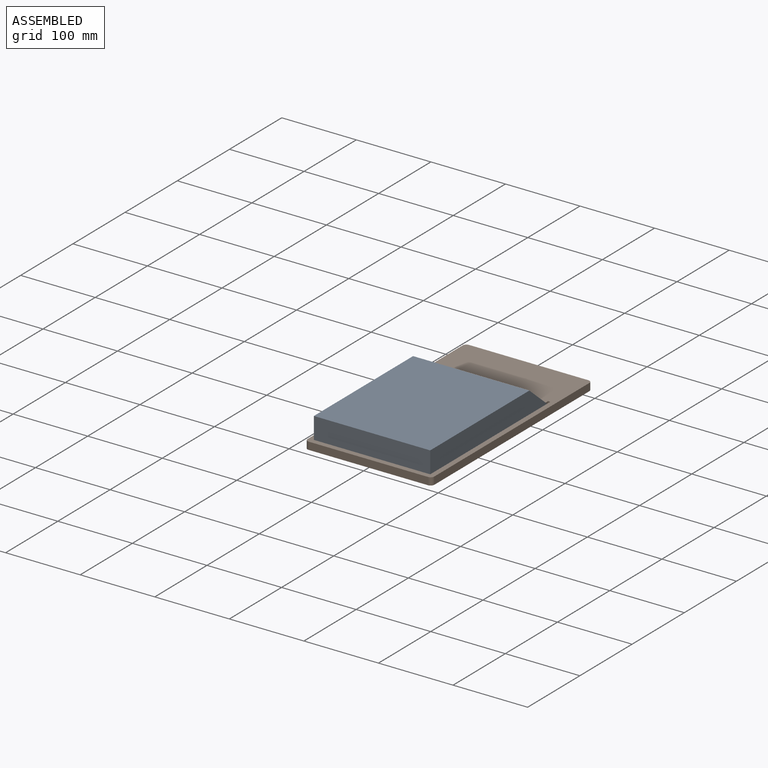
[diagram: assembled view]
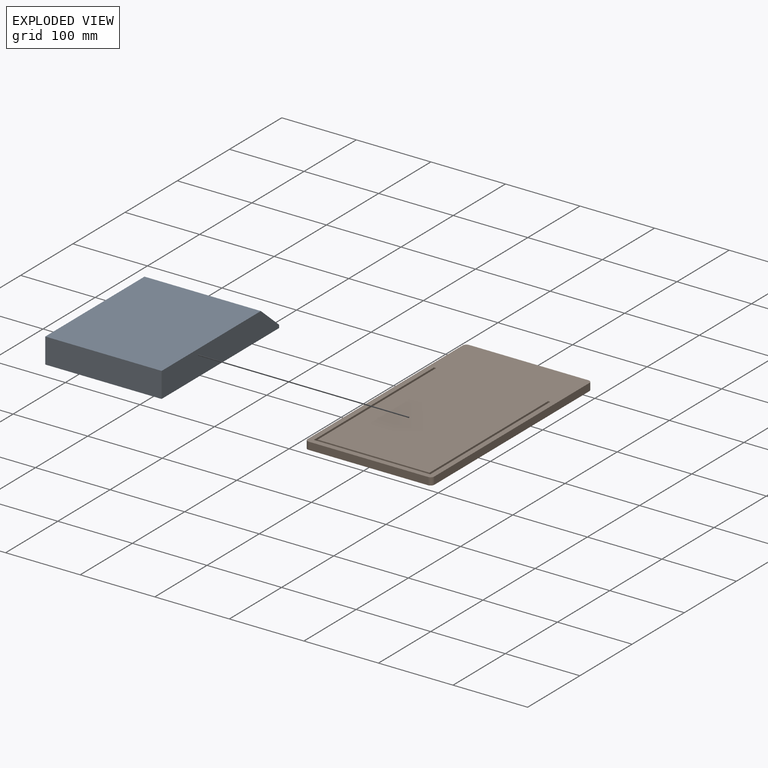
[diagram: exploded view]
GUIDED TOUR — MATED ASSEMBLY WITH SUBASSEMBLIES (Onshape document 761ed2dd8f27ee78cebc1cdc, AutoMate assembly 761ed2dd8f27ee78cebc1cdc_ed7d5ec01bba8ca3cb53f07b_902e0118a662173ad1f72368_default)

This assembly has 5 component occurrences arranged in 2 top-level units: 1 individual components plus 1 subassembly (S0). The tour has two levels: first the top level, where each subassembly is treated as one rigid unit; then each subassembly is toured internally in its own section (nesting deeper than one subassembly level is flattened into its subassembly's section).

Components are labeled P0..P4 across the whole record; subassembly units are labeled S0..S0. A mate is a constraint between two units; its type names the relative motion it leaves free:
  PLANAR — leaves sliding in the plane through the listed point (normal = the listed direction) and rotation about that normal free.
Axis/direction vectors are unit vectors and 'through' points are millimeter coordinates, both in the assembly's world frame.

TOP-LEVEL MATES (between units; each subassembly's internal mates are listed in its own section)
  1. PLANAR "Planar 2": P4 <-> S0, direction (-1.000, 0.000, 0.000) through (84.02, -77.47, -69.41) mm
  2. PLANAR "Planar 3": S0 <-> P4, direction (0.000, -1.000, 0.000) through (6.02, -192.47, -56.10) mm
  3. PLANAR "Planar 1": P4 <-> S0, direction (0.000, 0.000, 1.000) through (6.02, -105.38, -71.91) mm

TOP-LEVEL ASSEMBLY ORDER
  1. P4 — the base component [order verified]
  2. S0 [order verified]
Order-tag legend:
  [order verified] — this step's position reverses a verified removal order: the component was checked to insert without passing through the ones already placed.

Of the 5 component occurrences, 1 carries the full construction recipe — the FeatureScript program that regenerates the part's solid from scratch; the rest are supplied as boundary geometry only. Each toured unit is shown spotlighted twice — assembled, then exploded with a leader line back to its socket (green = recipe-attached component, orange = geometry-only, blue = subassembly unit; the rest desaturated gray).
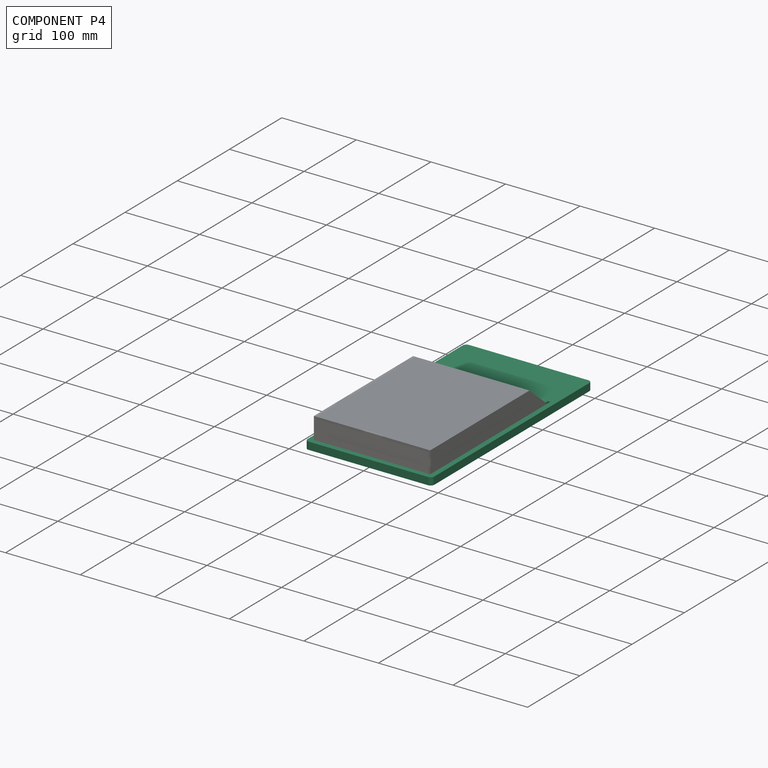
[diagram: component P4 — assembled]
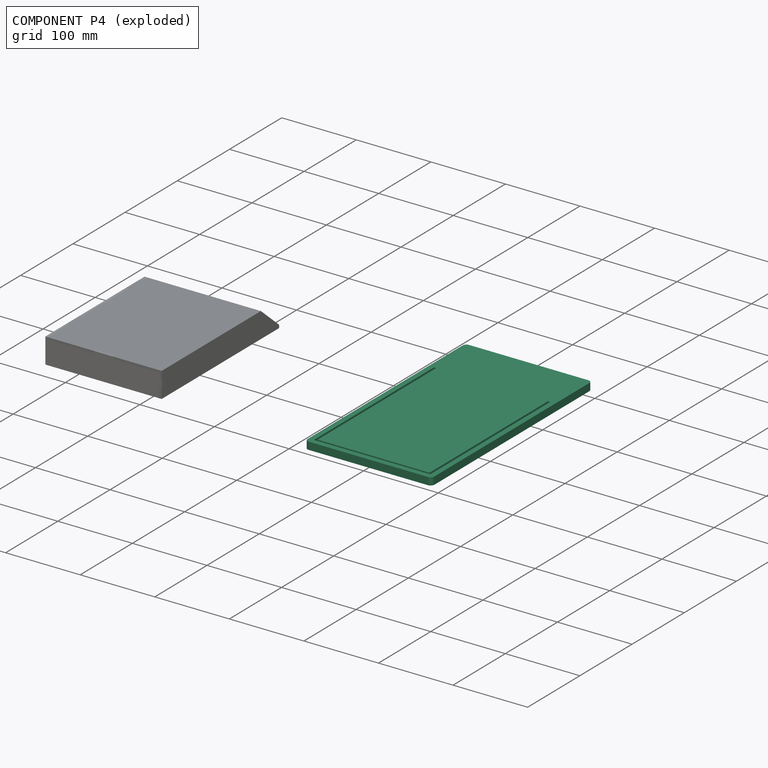
[diagram: component P4 — exploded]
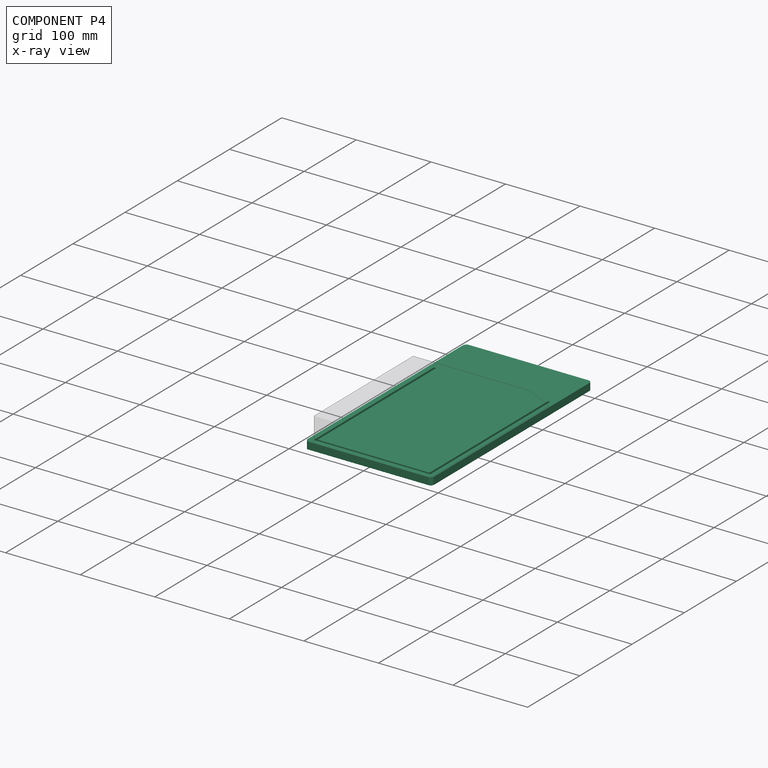
[diagram: component P4 — x-ray view]
COMPONENT P4 — recipe-attached (CADFS 00233528, mesh-verified: the recipe's output STEP matches this component's geometry to below the mesh-comparison resolution (tessellation chordal tolerance ~0.527 mm)).
Held by: PLANAR mate "Planar 2" to P0; PLANAR mate "Planar 3" to P0; PLANAR mate "Planar 1" to P0.
Construction recipe (FeatureScript — the CAD program that rebuilds this solid; sketch coordinates are in the units given by the * unit suffixes, e.g. mm):

FeatureScript 1511;
import(path : "onshape/std/geometry.fs", version : "1511.0");
import(path : "onshape/std/common.fs", version : "1511.0");
const mm = millimeter;
const VERTEX = EntityType.VERTEX;
const EDGE = EntityType.EDGE;
const FACE = EntityType.FACE;
const BODY = EntityType.BODY;
function v(x, y){return vector(x, y);}
function OD(order){return orderDisambiguation(order);}
function OSD(set){return originalSetDisambiguation(set);}
function TD(topology){return topologyDisambiguation(topology);}
function TDD(query){return trueDependencyDisambiguation(query);}
function sQuery(a, b, c) {return sketchEntityQuery(a, b, c);}

annotation { "Feature Type Name" : "Feature", "Feature Type Description" : "" }
export const myFeature = defineFeature(function(context is Context, id is Id, definition is map)
    precondition{}
    {
        {
            var Q0;
            Q0=qCreatedBy(makeId("Top.planeOp"),FACE);
            var sketch = newSketch(context, id + "F0", { "sketchPlane" : qUnion([Q0])});
            skLineSegment(sketch, "E0.bottom", {"start": v(80, 153.5) * mm, "end": v(-80, 153.5) * mm});
            skLineSegment(sketch, "E0.top", {"start": v(80, -153.5) * mm, "end": v(-80, -153.5) * mm});
            skLineSegment(sketch, "E0.left", {"start": v(85, 148.5) * mm, "end": v(85, -148.5) * mm});
            skLineSegment(sketch, "E0.right", {"start": v(-85, 148.5) * mm, "end": v(-85, -148.5) * mm});
            skPoint(sketch, "E0.middle", {"position": v(0, 0) * mm});
            skPoint(sketch, "E1.visualSharp", {"position": v(-85, 153.5) * mm});
            skArc(sketch, "E1.filletArc", {"start": v(-80, 153.5) * mm, "mid": v(-83.54, 152.04) * mm, "end": v(-85, 148.5) * mm});
            skPoint(sketch, "E2.visualSharp", {"position": v(85, 153.5) * mm});
            skArc(sketch, "E2.filletArc", {"start": v(85, 148.5) * mm, "mid": v(83.54, 152.04) * mm, "end": v(80, 153.5) * mm});
            skPoint(sketch, "E3.visualSharp", {"position": v(-85, -153.5) * mm});
            skArc(sketch, "E3.filletArc", {"start": v(-85, -148.5) * mm, "mid": v(-83.54, -152.04) * mm, "end": v(-80, -153.5) * mm});
            skPoint(sketch, "E4.visualSharp", {"position": v(85, -153.5) * mm});
            skArc(sketch, "E4.filletArc", {"start": v(80, -153.5) * mm, "mid": v(83.54, -152.04) * mm, "end": v(85, -148.5) * mm});
            skLineSegment(sketch, "E5", {"start": v(-78, 83.5) * mm, "end": v(-78, -146.5) * mm});
            skLineSegment(sketch, "E6", {"start": v(-78, -146.5) * mm, "end": v(78, -146.5) * mm});
            skLineSegment(sketch, "E7", {"start": v(78, -146.5) * mm, "end": v(78, 83.5) * mm});
            skLineSegment(sketch, "E8", {"start": v(78, 83.5) * mm, "end": v(75, 83.5) * mm});
            skLineSegment(sketch, "E9", {"start": v(75, 83.5) * mm, "end": v(75, -143.5) * mm});
            skLineSegment(sketch, "E10", {"start": v(75, -143.5) * mm, "end": v(-75, -143.5) * mm});
            skLineSegment(sketch, "E11", {"start": v(-75, -143.5) * mm, "end": v(-75, 83.5) * mm});
            skLineSegment(sketch, "E12", {"start": v(-75, 83.5) * mm, "end": v(-78, 83.5) * mm});
            skLineSegment(sketch, "E13", {"start": v(0, 75.67) * mm, "end": v(0, -79.3) * mm, "construction": true});
            skLineSegment(sketch, "E14", {"start": v(-75, -143.5) * mm, "end": v(-75, -146.5) * mm, "construction": true});
            skSolve(sketch);
        }
        {
            var Q0;
            Q0=makeQuery(id+"F0.imprint","IMPRINT",FACE,{"disambiguationData":[TD([[makeQuery(id+"F0.imprint","IMPRINT",EDGE,{"derivedFrom":sQuery(id+"F0.wireOp",EDGE,"E0.bottom")}),1.0]])]});
            var Q1;
            Q1=makeQuery(id+"F0.imprint","IMPRINT",FACE,{"disambiguationData":[TD([[makeQuery(id+"F0.imprint","IMPRINT",EDGE,{"derivedFrom":sQuery(id+"F0.wireOp",EDGE,"E5")}),1.0]])]});
            extrude(context, id + "F1", {"entities" : qUnion([Q0, Q1]), "oppositeDirection" : true, "depth" : 10 * mm});
        }
        {
            var Q0;
            Q0=makeQuery(id+"F0.imprint","IMPRINT",FACE,{"disambiguationData":[TD([[makeQuery(id+"F0.imprint","IMPRINT",EDGE,{"derivedFrom":sQuery(id+"F0.wireOp",EDGE,"E5")}),1.0]])]});
            extrude(context, id + "F2", {"entities" : qUnion([Q0]), "operationType" : NewBodyOperationType.REMOVE, "oppositeDirection" : true, "depth" : 5 * mm});
        }
    });
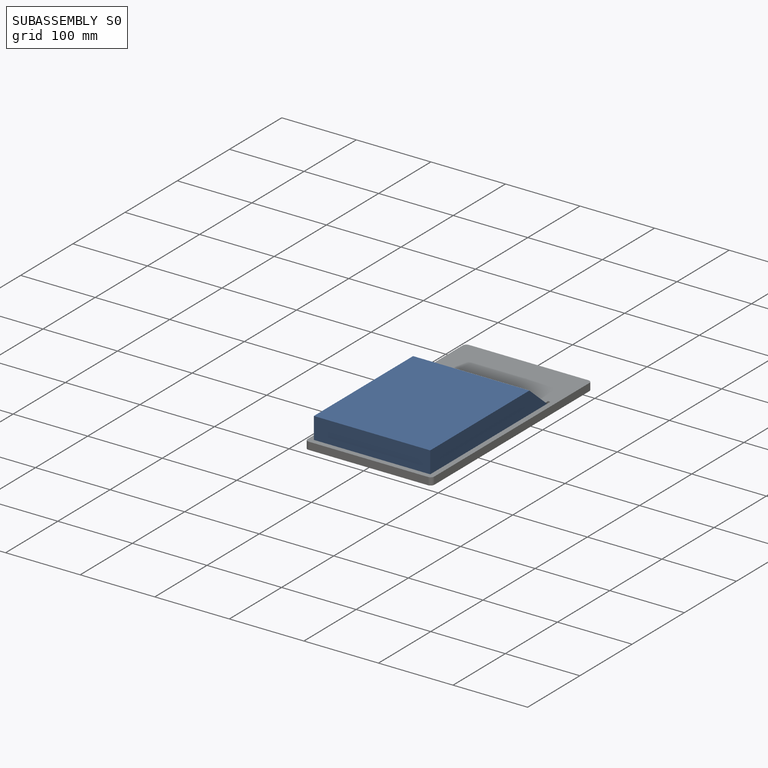
[diagram: subassembly S0 — assembled]
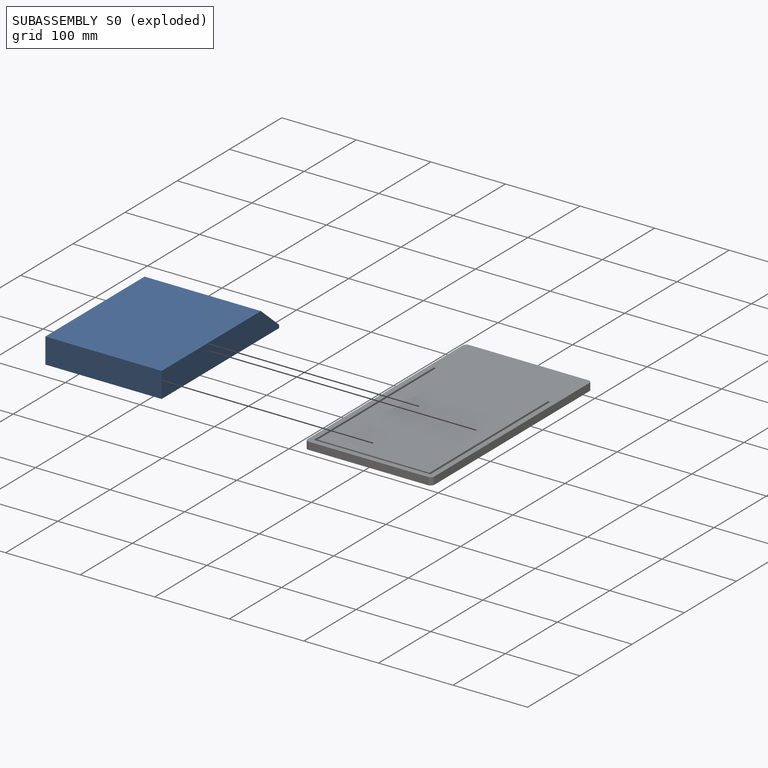
[diagram: subassembly S0 — exploded]
SUBASSEMBLY S0 — 4 components (P0, P1, P2, P3), of which 0 recipe-attached; toured below.
Held by: PLANAR mate "Planar 2" to P4; PLANAR mate "Planar 3" to P4; PLANAR mate "Planar 1" to P4.
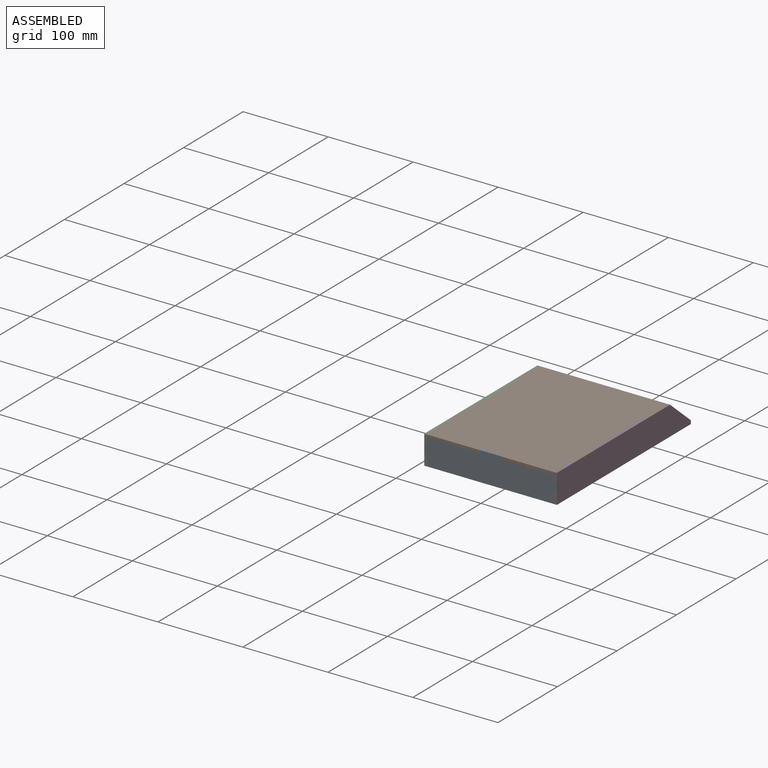
[diagram: subassembly S0 — assembled view]
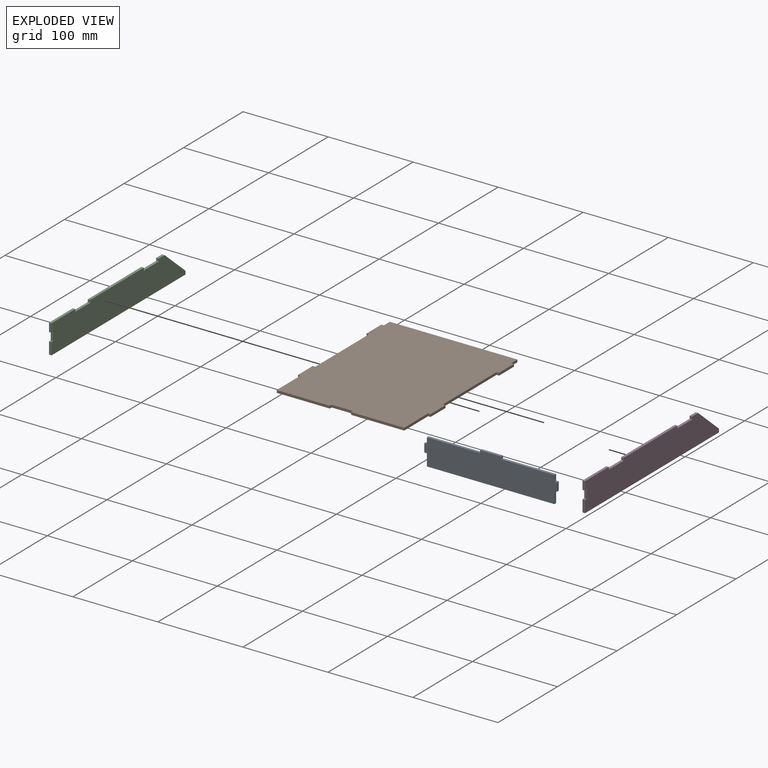
[diagram: subassembly S0 — exploded view]
SUBASSEMBLY S0 TOUR — 4 components, shown here in isolation at its own camera.

INTERNAL MATES
  1. PLANAR "Planar 8": P0 <-> P2, direction (-1.000, 0.000, 0.000) through (-71.98, -190.97, -52.91) mm
  2. PLANAR "Planar 7": P2 <-> P0, direction (0.000, -1.000, 0.000) through (-70.48, -192.47, -42.91) mm
  3. PLANAR "Planar 1": P1 <-> P3, direction (1.000, 0.000, 0.000) through (84.02, -24.97, -39.41) mm
  4. PLANAR "Planar 9": P1 <-> P0, direction (0.000, 0.000, 1.000) through (6.02, -97.07, -37.91) mm
  5. PLANAR "Planar 2": P3 <-> P1, direction (0.000, 0.000, 1.000) through (82.52, -82.47, -37.91) mm
  6. PLANAR "Planar 5": P2 <-> P1, direction (-1.000, 0.000, 0.000) through (-71.98, -87.06, -55.78) mm
  7. PLANAR "Planar 4": P2 <-> P1, direction (0.000, 0.000, 1.000) through (-70.48, -139.97, -40.91) mm
  8. PLANAR "Planar 5": P2 <-> P1, direction (-1.000, 0.000, 0.000) through (-71.98, -87.06, -55.78) mm
  9. PLANAR "Planar 2": P3 <-> P1, direction (0.000, 0.000, 1.000) through (82.52, -82.47, -37.91) mm
  10. PLANAR "Planar 7": P2 <-> P0, direction (0.000, -1.000, 0.000) through (-70.48, -192.47, -42.91) mm
  11. PLANAR "Planar 8": P0 <-> P2, direction (-1.000, 0.000, 0.000) through (-71.98, -190.97, -52.91) mm
  12. PLANAR "Planar 1": P1 <-> P3, direction (1.000, 0.000, 0.000) through (84.02, -24.97, -39.41) mm
  13. PLANAR "Planar 9": P1 <-> P0, direction (0.000, 0.000, 1.000) through (6.02, -97.07, -37.91) mm

ASSEMBLY ORDER (within the subassembly)
  1. P0 — the base component [order verified]
  2. P1 [order verified]
  3. P2 [order verified]
  4. P3 [order verified]
Order-tag legend:
  [order verified] — this step's position reverses a verified removal order: the component was checked to insert without passing through the ones already placed.
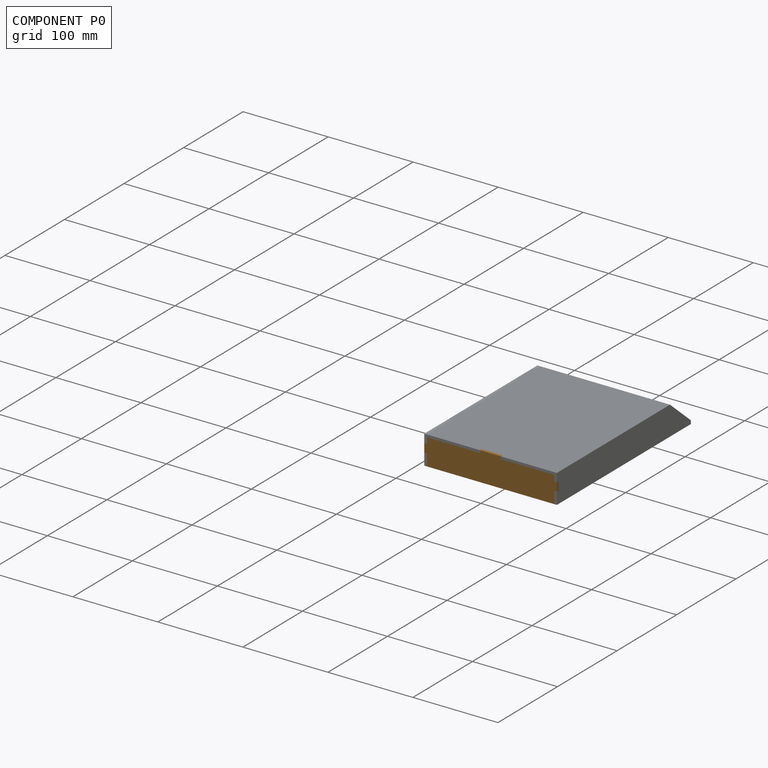
[diagram: component P0 — assembled]
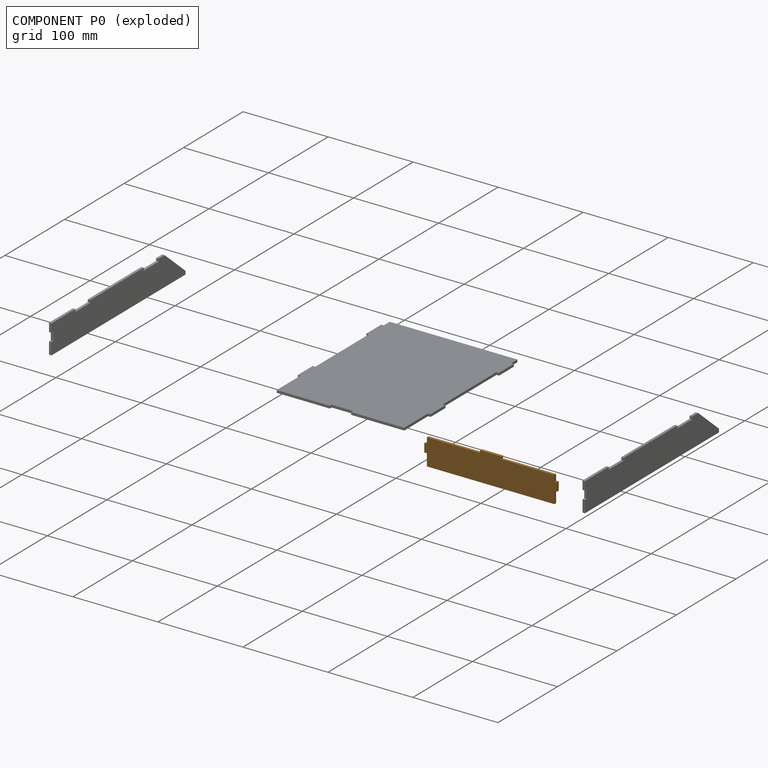
[diagram: component P0 — exploded]
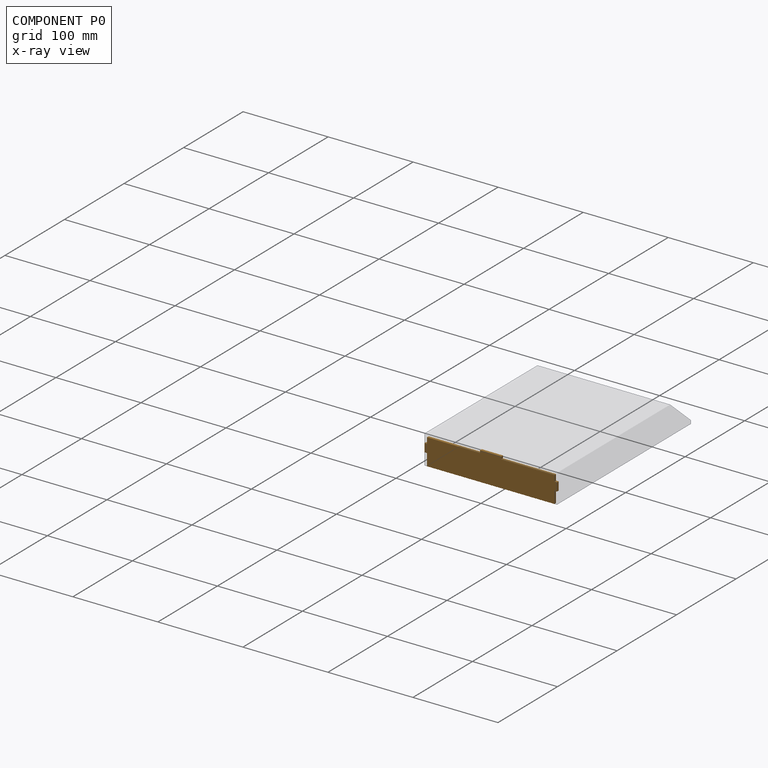
[diagram: component P0 — x-ray view]
COMPONENT P0 — geometry summary (no construction recipe available for this part):
  bounding box: 156.0 x 34.0 x 3.0 mm
  B-rep topology: 1 solid, 18 faces, 96 edges
  volume: 14355 mm^3 (90% of its bounding box)
  symmetry: 2-fold rotationally symmetric about the y axis; mirror-symmetric across its x mid-plane, z mid-plane
Held by: PLANAR mate "Planar 8" to P2; PLANAR mate "Planar 7" to P2; PLANAR mate "Planar 9" to P1; PLANAR mate "Planar 7" to P2; PLANAR mate "Planar 8" to P2; PLANAR mate "Planar 9" to P1.
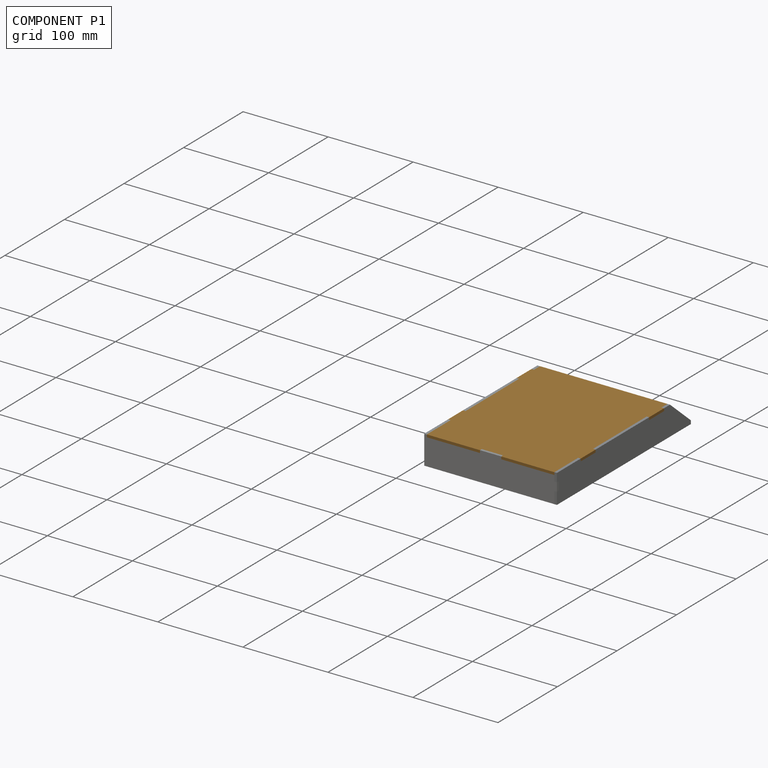
[diagram: component P1 — assembled]
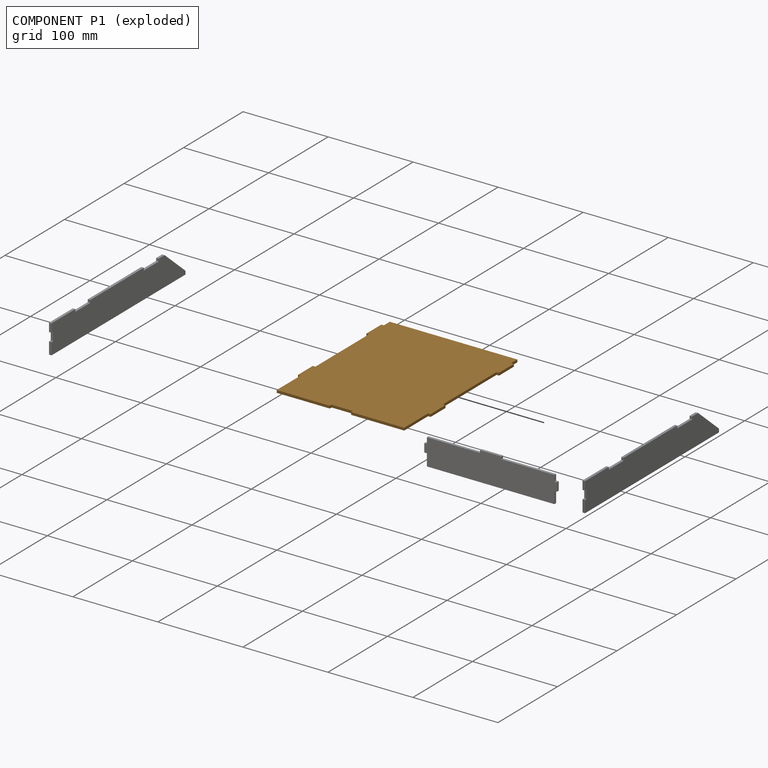
[diagram: component P1 — exploded]
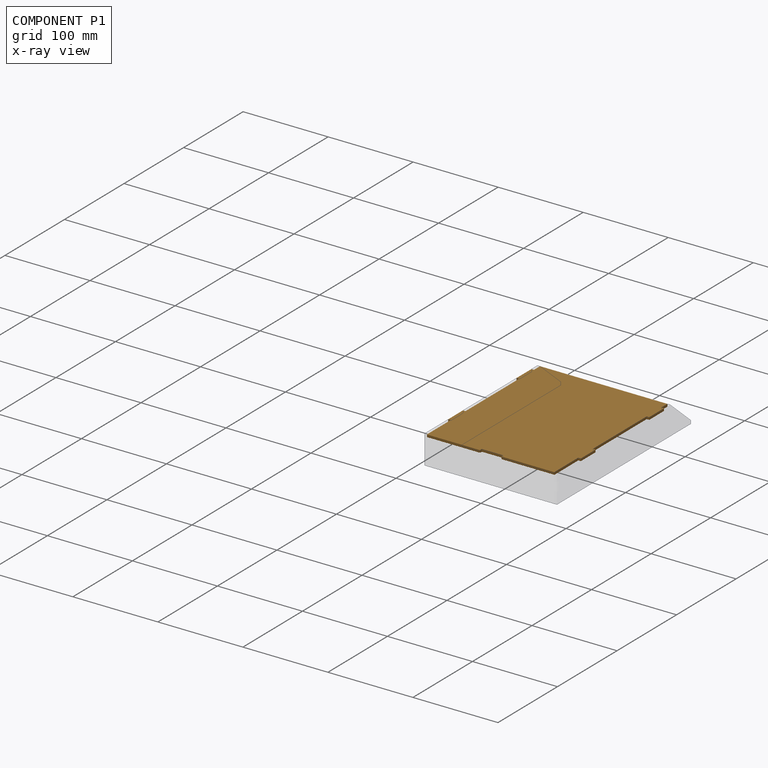
[diagram: component P1 — x-ray view]
COMPONENT P1 — geometry summary (no construction recipe available for this part):
  bounding box: 190.0 x 156.0 x 3.0 mm
  B-rep topology: 1 solid, 26 faces, 144 edges
  volume: 86175 mm^3 (97% of its bounding box)
  symmetry: 2-fold rotationally symmetric about the y axis; mirror-symmetric across its x mid-plane, z mid-plane
Held by: PLANAR mate "Planar 1" to P3; PLANAR mate "Planar 9" to P0; PLANAR mate "Planar 2" to P3; PLANAR mate "Planar 5" to P2; PLANAR mate "Planar 4" to P2; PLANAR mate "Planar 5" to P2; PLANAR mate "Planar 2" to P3; PLANAR mate "Planar 1" to P3; PLANAR mate "Planar 9" to P0.
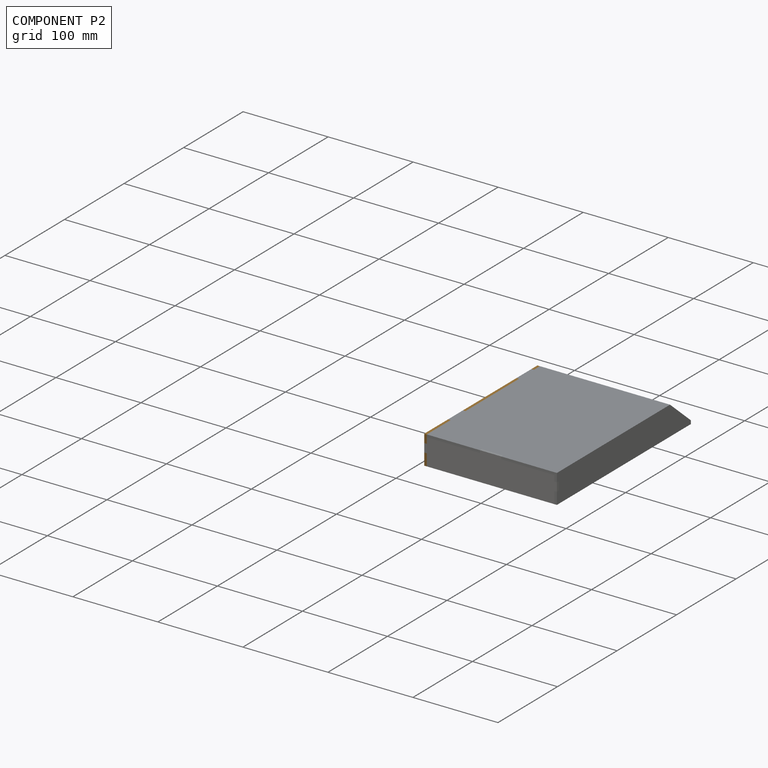
[diagram: component P2 — assembled]
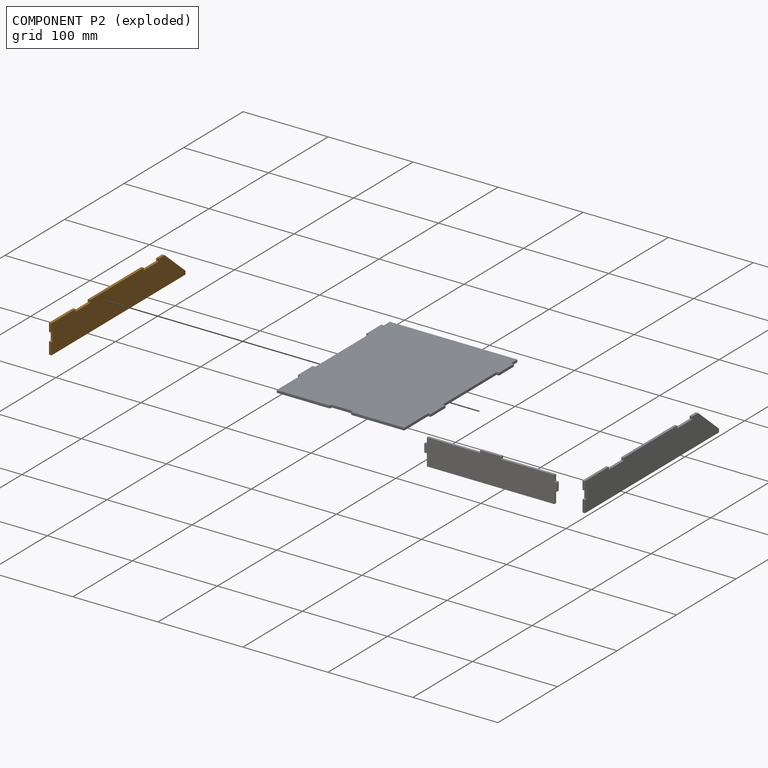
[diagram: component P2 — exploded]
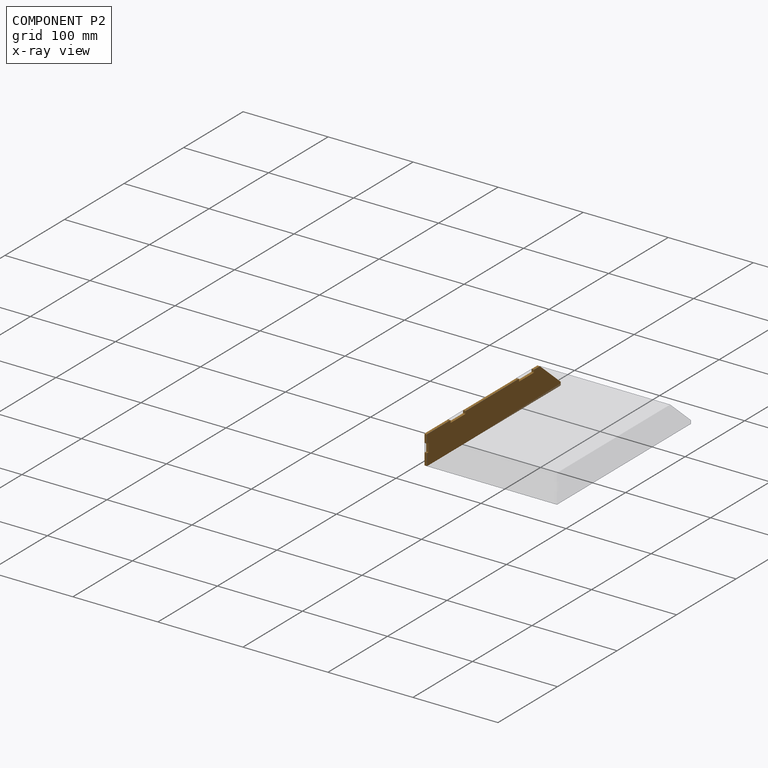
[diagram: component P2 — x-ray view]
COMPONENT P2 — geometry summary (no construction recipe available for this part):
  bounding box: 225.0 x 34.0 x 3.0 mm
  B-rep topology: 1 solid, 19 faces, 102 edges
  volume: 20835 mm^3 (91% of its bounding box)
  symmetry: mirror-symmetric across its z mid-plane
Held by: PLANAR mate "Planar 8" to P0; PLANAR mate "Planar 7" to P0; PLANAR mate "Planar 5" to P1; PLANAR mate "Planar 4" to P1; PLANAR mate "Planar 5" to P1; PLANAR mate "Planar 7" to P0; PLANAR mate "Planar 8" to P0.
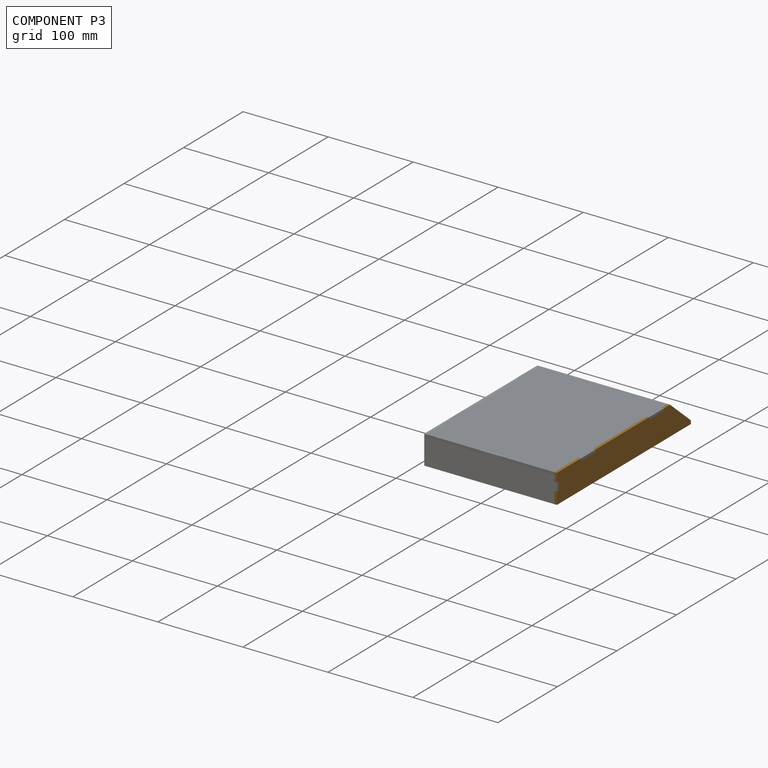
[diagram: component P3 — assembled]
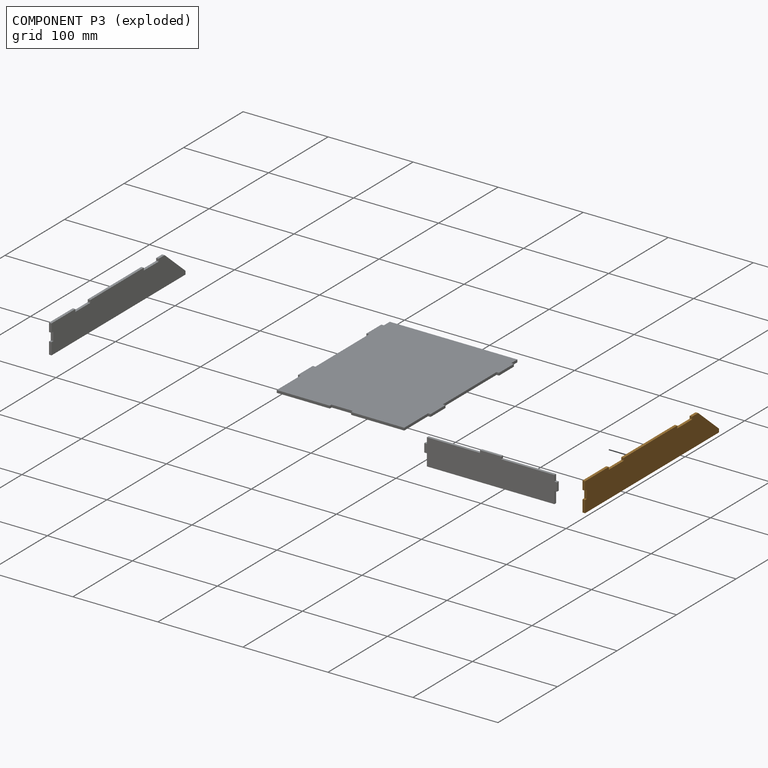
[diagram: component P3 — exploded]
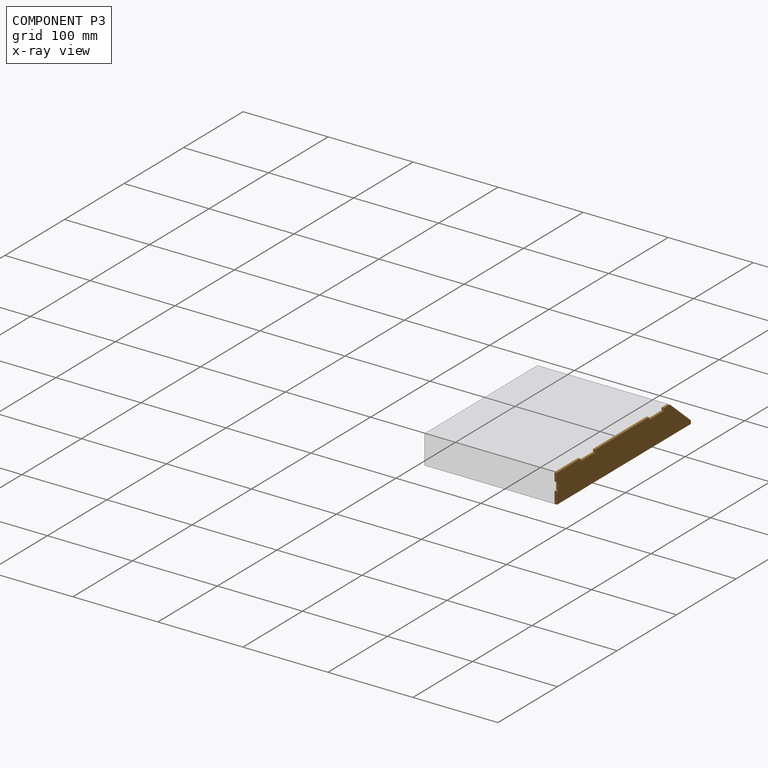
[diagram: component P3 — x-ray view]
COMPONENT P3 — geometry summary (no construction recipe available for this part):
  bounding box: 225.0 x 34.0 x 3.0 mm
  B-rep topology: 1 solid, 19 faces, 102 edges
  volume: 20835 mm^3 (91% of its bounding box)
  symmetry: mirror-symmetric across its z mid-plane
Held by: PLANAR mate "Planar 1" to P1; PLANAR mate "Planar 2" to P1; PLANAR mate "Planar 2" to P1; PLANAR mate "Planar 1" to P1.
PROVENANCE & LICENSES
Assembly (occurrences, transforms, mates, per-part STEP geometry): AutoMate dataset, Zenodo record 7776208, CC0.
Construction recipes: CADFS (HuggingFace VladPyatov/CADFS, CC-BY-4.0, layered over the ABC dataset), FeatureScript reconstruction programs keyed by ABC model id.
Join: ABC meta listings map ABC model id -> Onshape documentId; within a shared document, parts are matched by geometric signature (bounding-box dims + volume at 0.1% relative tolerance, exact B-rep face/solid counts).
Verification: 1 of this assembly's 5 components carries a recipe attachment, and every attachment is mesh-verified: the CADFS STEP and the AutoMate member STEP were compared as meshes in their shared local frame (symmetric sampled-point-to-mesh distance); worst across the 1 attachment: below the mesh-comparison resolution (tessellation chordal tolerance ~0.527 mm) on a 351 mm part.
Renders: orthographic iso camera (az 35 / el 25); the floor grid conveys scale (grid pitch printed in each image; no ruler). In the exploded view each component is displaced by its stored offset vector: the offsets alone carry the explosion direction (mate normal/axis signs are not orientation cues and do not encode it), and separation distances are assigned per mate-chain, not proportionally to assembly-order depth.
